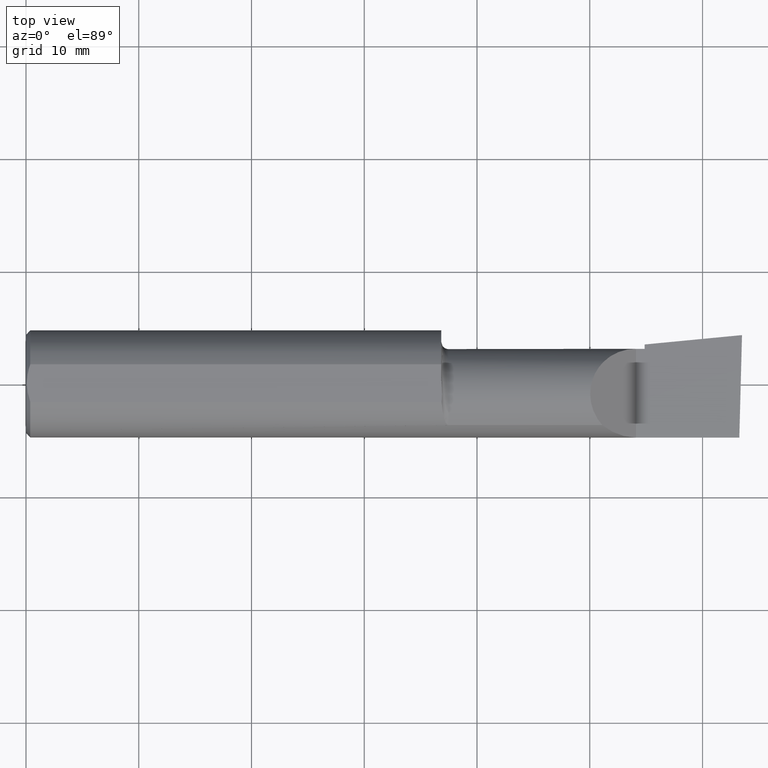
[diagram: clean part render]
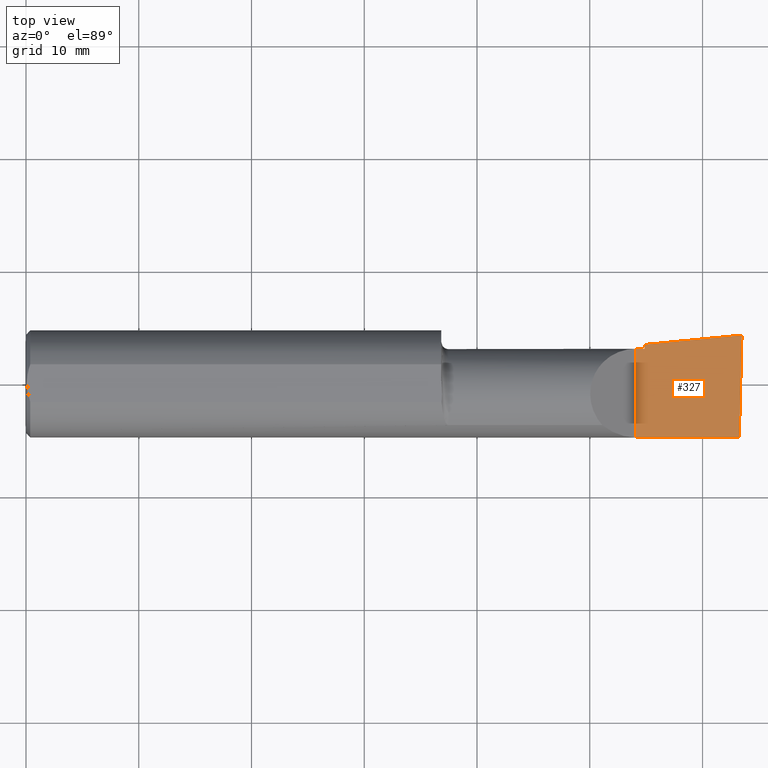
[diagram: same view with one face highlighted and labeled with its STEP entity id]
A machine part, top view. The second image highlights one B-rep face of the part: STEP entity #327.
In plain terms, the highlighted planar face has unit normal (-0, 0, -1).
Its self-contained STEP definition (entity closure, byte-faithful):
#6 = VERTEX_POINT ( 'NONE', #79 ) ;
#10 = ORIENTED_EDGE ( 'NONE', *, *, #180, .F. ) ;
#19 = VECTOR ( 'NONE', #372, 39.37007874015748854 ) ;
#20 = CARTESIAN_POINT ( 'NONE',  ( 2.500000000000000000, -0.2500000000000000555, 6.829619984160658046E-17 ) ) ;
#34 = LINE ( 'NONE', #511, #324 ) ;
#40 = VECTOR ( 'NONE', #476, 39.37007874015748143 ) ;
#65 = VERTEX_POINT ( 'NONE', #550 ) ;
#75 = VERTEX_POINT ( 'NONE', #141 ) ;
#79 = CARTESIAN_POINT ( 'NONE',  ( 2.129999999999999893, 0.1226499999999998147, 1.065442715258197396E-16 ) ) ;
#92 = EDGE_CURVE ( 'NONE', #156, #386, #448, .T. ) ;
#129 = VECTOR ( 'NONE', #266, 39.37007874015748143 ) ;
#141 = CARTESIAN_POINT ( 'NONE',  ( 2.129999999999999893, -0.1873499999999999888, 1.065442715258197396E-16 ) ) ;
#146 = ORIENTED_EDGE ( 'NONE', *, *, #399, .F. ) ;
#156 = VERTEX_POINT ( 'NONE', #635 ) ;
#157 = LINE ( 'NONE', #351, #129 ) ;
#175 = CARTESIAN_POINT ( 'NONE',  ( 2.488992440003207296, -0.2497117568972554158, 6.943408617627041469E-17 ) ) ;
#180 = EDGE_CURVE ( 'NONE', #75, #6, #254, .T. ) ;
#184 = ORIENTED_EDGE ( 'NONE', *, *, #308, .F. ) ;
#188 = VECTOR ( 'NONE', #451, 39.37007874015748143 ) ;
#207 = ORIENTED_EDGE ( 'NONE', *, *, #238, .T. ) ;
#210 = CARTESIAN_POINT ( 'NONE',  ( 2.490625440078237940, -0.1873499999999999888, 6.926778495256700803E-17 ) ) ;
#224 = DIRECTION ( 'NONE',  ( -1.000000000000000000, 0.000000000000000000, 1.033731667140896077E-16 ) ) ;
#234 = VERTEX_POINT ( 'NONE', #210 ) ;
#238 = EDGE_CURVE ( 'NONE', #234, #386, #264, .T. ) ;
#252 = ORIENTED_EDGE ( 'NONE', *, *, #92, .F. ) ;
#254 = LINE ( 'NONE', #411, #458 ) ;
#257 = DIRECTION ( 'NONE',  ( -0.000000000000000000, 1.000000000000000000, -0.000000000000000000 ) ) ;
#262 = EDGE_LOOP ( 'NONE', ( #146, #207, #252, #184, #453, #10 ) ) ;
#264 = LINE ( 'NONE', #175, #19 ) ;
#266 = DIRECTION ( 'NONE',  ( 1.000000000000000000, -6.829619984160658046E-18, 0.000000000000000000 ) ) ;
#302 = CARTESIAN_POINT ( 'NONE',  ( 0.3393181374772696324, -0.03739999999999998881, 2.916527262322783071E-16 ) ) ;
#308 = EDGE_CURVE ( 'NONE', #65, #156, #34, .T. ) ;
#318 = DIRECTION ( 'NONE',  ( -1.033731667140896077E-16, 0.000000000000000000, -1.000000000000000000 ) ) ;
#324 = VECTOR ( 'NONE', #524, 39.37007874015748143 ) ;
#327 = ADVANCED_FACE ( 'NONE', ( #414 ), #603, .F. ) ;
#351 = CARTESIAN_POINT ( 'NONE',  ( 1.093080678464946554E-18, 0.1226499999999999257, 3.267291166268304703E-16 ) ) ;
#372 = DIRECTION ( 'NONE',  ( 0.02617694830791466795, 0.9996573249755561497, -2.665804247648012316E-18 ) ) ;
#386 = VERTEX_POINT ( 'NONE', #392 ) ;
#392 = CARTESIAN_POINT ( 'NONE',  ( 2.500000000000034195, 0.1706500000000318318, 9.292204874308774392E-14 ) ) ;
#399 = EDGE_CURVE ( 'NONE', #234, #75, #527, .T. ) ;
#411 = CARTESIAN_POINT ( 'NONE',  ( 2.129999999999999893, -0.2500000000000000555, 1.065442715258197396E-16 ) ) ;
#414 = FACE_OUTER_BOUND ( 'NONE', #262, .T. ) ;
#448 = LINE ( 'NONE', #302, #188 ) ;
#451 = DIRECTION ( 'NONE',  ( 0.9953961983671787417, 0.09584575252022459191, -1.028972571603813720E-16 ) ) ;
#453 = ORIENTED_EDGE ( 'NONE', *, *, #630, .F. ) ;
#458 = VECTOR ( 'NONE', #257, 39.37007874015748143 ) ;
#476 = DIRECTION ( 'NONE',  ( -1.000000000000000000, -0.000000000000000000, -0.000000000000000000 ) ) ;
#511 = CARTESIAN_POINT ( 'NONE',  ( 2.160000000000000142, -0.2500000000000000555, 1.034430765243970311E-16 ) ) ;
#524 = DIRECTION ( 'NONE',  ( 6.829619984160658816E-18, 1.000000000000000000, -7.059994452165177242E-34 ) ) ;
#527 = LINE ( 'NONE', #625, #40 ) ;
#538 = AXIS2_PLACEMENT_3D ( 'NONE', #20, #318, #224 ) ;
#550 = CARTESIAN_POINT ( 'NONE',  ( 2.160000000000000142, 0.1226499999999999674, 3.267291166268306182E-16 ) ) ;
#603 = PLANE ( 'NONE',  #538 ) ;
#625 = CARTESIAN_POINT ( 'NONE',  ( 3.377502344341257155E-32, -0.1873499999999999610, 3.267291166268304703E-16 ) ) ;
#630 = EDGE_CURVE ( 'NONE', #6, #65, #157, .T. ) ;
#635 = CARTESIAN_POINT ( 'NONE',  ( 2.160000000000000142, 0.1379117236128417356, 3.286754617377316716E-16 ) ) ;